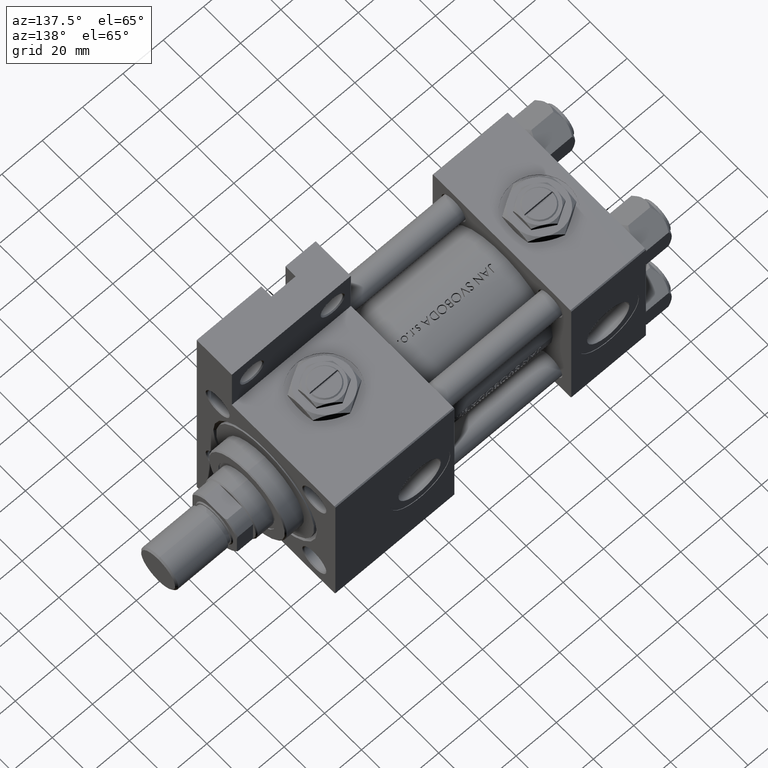
[diagram: clean part render]
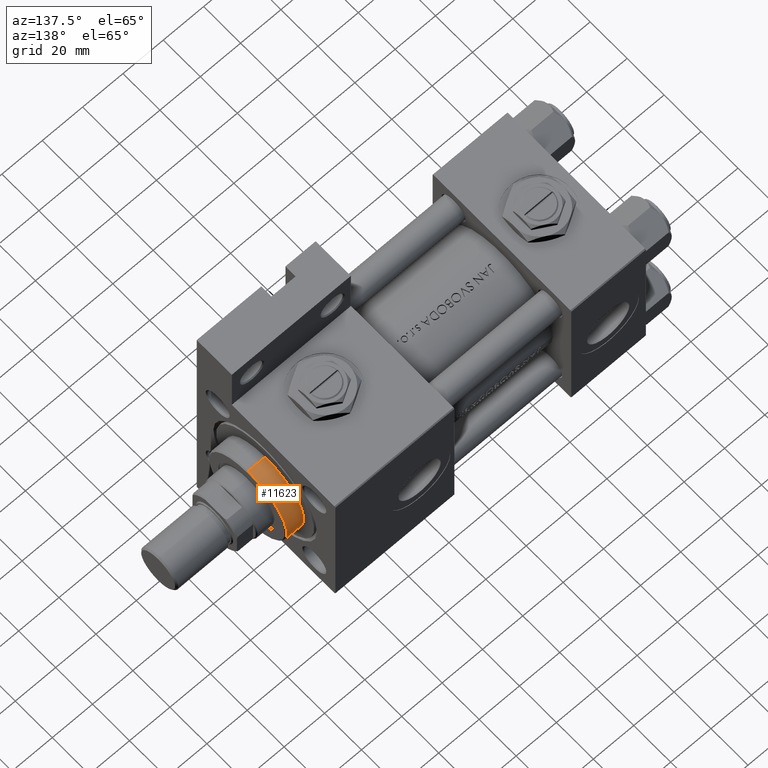
[diagram: same view with one face highlighted and labeled with its STEP entity id]
A machine part, auxiliary view. The second image highlights one B-rep face of the part: STEP entity #11623.
In plain terms, the highlighted cylindrical surface (partial cylindrical patch) has radius 21 mm, axis along (-1, 0, 0).
Its self-contained STEP definition (entity closure, byte-faithful):
#253 = VERTEX_POINT ( 'NONE', #22918 ) ;
#1686 = CARTESIAN_POINT ( 'NONE',  ( 0.000000000000000000, 0.000000000000000000, 28.69999999999999929 ) ) ;
#2163 = AXIS2_PLACEMENT_3D ( 'NONE', #36953, #2195, #37442 ) ;
#2195 = DIRECTION ( 'NONE',  ( 0.000000000000000000, 0.000000000000000000, -1.000000000000000000 ) ) ;
#2563 = EDGE_CURVE ( 'NONE', #16821, #34809, #33409, .T. ) ;
#4499 = ORIENTED_EDGE ( 'NONE', *, *, #7459, .F. ) ;
#5413 = CIRCLE ( 'NONE', #2163, 21.00000000000000000 ) ;
#5791 = DIRECTION ( 'NONE',  ( -0.000000000000000000, -0.000000000000000000, -1.000000000000000000 ) ) ;
#7103 = CARTESIAN_POINT ( 'NONE',  ( -21.00000000000000000, 0.000000000000000000, 28.69999999999999929 ) ) ;
#7459 = EDGE_CURVE ( 'NONE', #253, #34809, #12985, .T. ) ;
#11623 = ADVANCED_FACE ( 'NONE', ( #13934 ), #25852, .T. ) ;
#12985 = LINE ( 'NONE', #13496, #22222 ) ;
#13338 = CARTESIAN_POINT ( 'NONE',  ( -21.00000000000000000, 0.000000000000000000, 37.69999999999999574 ) ) ;
#13380 = DIRECTION ( 'NONE',  ( 1.000000000000000000, 0.000000000000000000, 0.000000000000000000 ) ) ;
#13496 = CARTESIAN_POINT ( 'NONE',  ( 21.00000000000000000, 2.571758278209441661E-15, 37.69999999999999574 ) ) ;
#13517 = VERTEX_POINT ( 'NONE', #23059 ) ;
#13695 = CARTESIAN_POINT ( 'NONE',  ( 21.00000000000000000, 2.571758278209441661E-15, 28.69999999999999929 ) ) ;
#13934 = FACE_OUTER_BOUND ( 'NONE', #19669, .T. ) ;
#15557 = ORIENTED_EDGE ( 'NONE', *, *, #2563, .T. ) ;
#15576 = AXIS2_PLACEMENT_3D ( 'NONE', #1686, #17915, #13380 ) ;
#16821 = VERTEX_POINT ( 'NONE', #7103 ) ;
#17915 = DIRECTION ( 'NONE',  ( 0.000000000000000000, 0.000000000000000000, 1.000000000000000000 ) ) ;
#19669 = EDGE_LOOP ( 'NONE', ( #4499, #41651, #29958, #15557 ) ) ;
#22222 = VECTOR ( 'NONE', #40860, 1000.000000000000000 ) ;
#22918 = CARTESIAN_POINT ( 'NONE',  ( 21.00000000000000000, 2.571758278209441661E-15, 37.19999999999999574 ) ) ;
#23059 = CARTESIAN_POINT ( 'NONE',  ( -21.00000000000000000, 0.000000000000000000, 37.19999999999999574 ) ) ;
#25852 = CYLINDRICAL_SURFACE ( 'NONE', #41666, 21.00000000000000000 ) ;
#29400 = CARTESIAN_POINT ( 'NONE',  ( 0.000000000000000000, 0.000000000000000000, 37.69999999999999574 ) ) ;
#29656 = DIRECTION ( 'NONE',  ( -1.000000000000000000, 0.000000000000000000, 0.000000000000000000 ) ) ;
#29722 = EDGE_CURVE ( 'NONE', #253, #13517, #5413, .T. ) ;
#29958 = ORIENTED_EDGE ( 'NONE', *, *, #46593, .T. ) ;
#33409 = CIRCLE ( 'NONE', #15576, 21.00000000000000000 ) ;
#34208 = VECTOR ( 'NONE', #36409, 1000.000000000000000 ) ;
#34809 = VERTEX_POINT ( 'NONE', #13695 ) ;
#35911 = LINE ( 'NONE', #13338, #34208 ) ;
#36409 = DIRECTION ( 'NONE',  ( -0.000000000000000000, -0.000000000000000000, -1.000000000000000000 ) ) ;
#36953 = CARTESIAN_POINT ( 'NONE',  ( 0.000000000000000000, 0.000000000000000000, 37.19999999999999574 ) ) ;
#37442 = DIRECTION ( 'NONE',  ( 1.000000000000000000, 0.000000000000000000, 0.000000000000000000 ) ) ;
#40860 = DIRECTION ( 'NONE',  ( -0.000000000000000000, -0.000000000000000000, -1.000000000000000000 ) ) ;
#41651 = ORIENTED_EDGE ( 'NONE', *, *, #29722, .T. ) ;
#41666 = AXIS2_PLACEMENT_3D ( 'NONE', #29400, #5791, #29656 ) ;
#46593 = EDGE_CURVE ( 'NONE', #13517, #16821, #35911, .T. ) ;